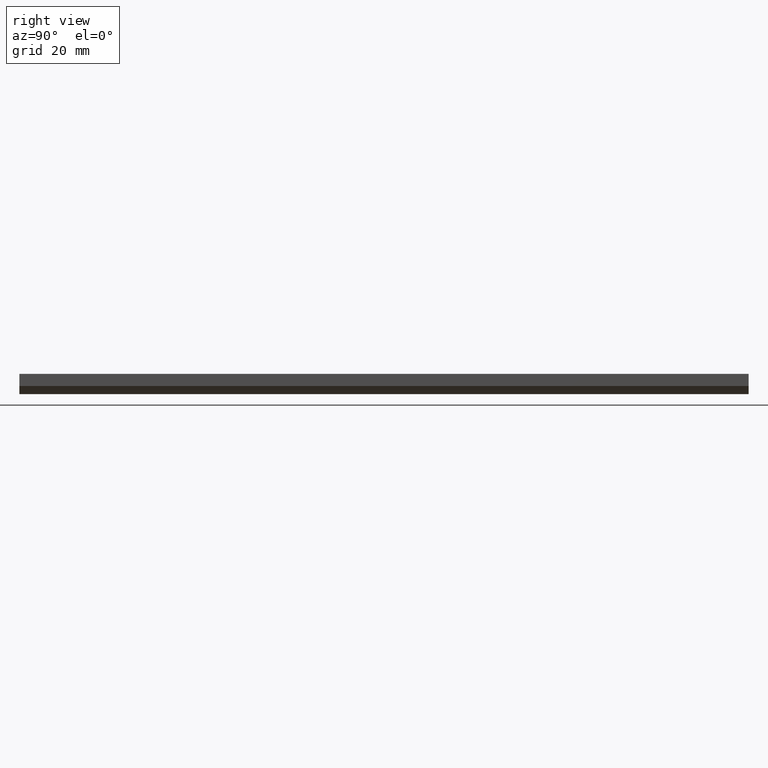
[diagram: clean part render]
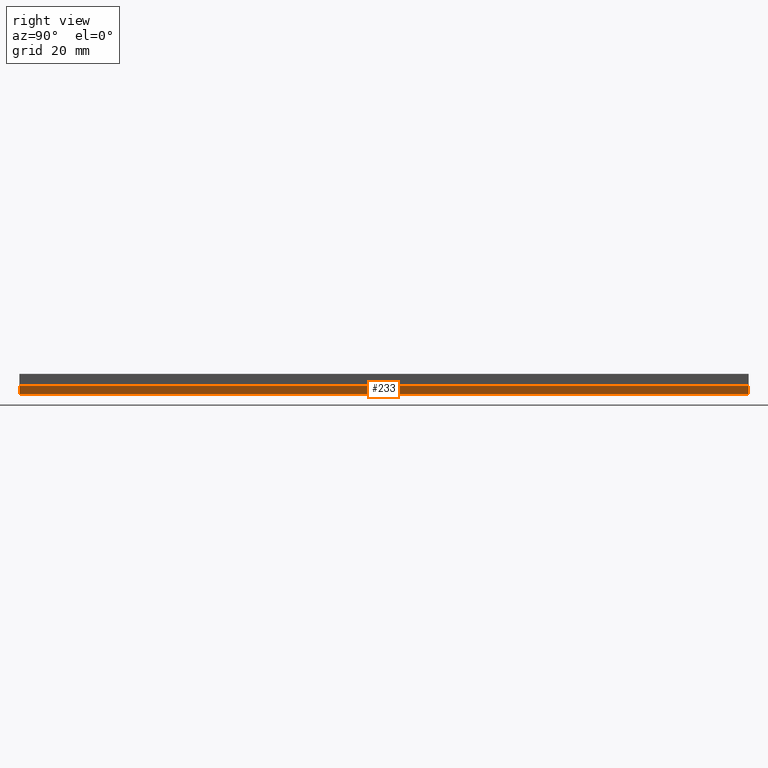
[diagram: same view with one face highlighted and labeled with its STEP entity id]
A machine part, right view. The second image highlights one B-rep face of the part: STEP entity #233.
In plain terms, the highlighted planar face has unit normal (-0.7071, 0, 0.7071).
Its self-contained STEP definition (entity closure, byte-faithful):
#42=FACE_OUTER_BOUND('',#54,.T.);
#54=EDGE_LOOP('',(#163,#164,#165,#166));
#78=LINE('',#332,#96);
#81=LINE('',#338,#99);
#82=LINE('',#340,#100);
#83=LINE('',#341,#101);
#96=VECTOR('',#271,180.);
#99=VECTOR('',#276,2.82842712474619);
#100=VECTOR('',#277,2.82842712474619);
#101=VECTOR('',#278,180.);
#114=VERTEX_POINT('',#329);
#115=VERTEX_POINT('',#331);
#117=VERTEX_POINT('',#337);
#118=VERTEX_POINT('',#339);
#134=EDGE_CURVE('',#114,#115,#78,.T.);
#137=EDGE_CURVE('',#115,#117,#81,.F.);
#138=EDGE_CURVE('',#118,#114,#82,.F.);
#139=EDGE_CURVE('',#117,#118,#83,.T.);
#163=ORIENTED_EDGE('',*,*,#137,.F.);
#164=ORIENTED_EDGE('',*,*,#134,.F.);
#165=ORIENTED_EDGE('',*,*,#138,.F.);
#166=ORIENTED_EDGE('',*,*,#139,.F.);
#212=PLANE('',#247);
#233=ADVANCED_FACE('',(#42),#212,.F.);
#247=AXIS2_PLACEMENT_3D('',#336,#274,#275);
#271=DIRECTION('',(0.,1.,0.));
#274=DIRECTION('center_axis',(-0.707106781186548,0.,0.707106781186548));
#275=DIRECTION('ref_axis',(0.,-1.,0.));
#276=DIRECTION('',(0.707106781186548,0.,0.707106781186548));
#277=DIRECTION('',(-0.707106781186548,0.,-0.707106781186548));
#278=DIRECTION('',(0.,-1.,0.));
#329=CARTESIAN_POINT('',(6.5,0.,-0.5));
#331=CARTESIAN_POINT('',(6.5,180.,-0.5));
#332=CARTESIAN_POINT('',(6.5,180.,-0.5));
#336=CARTESIAN_POINT('Origin',(4.5,180.,-2.5));
#337=CARTESIAN_POINT('',(4.5,180.,-2.5));
#338=CARTESIAN_POINT('',(3.5,180.,-3.5));
#339=CARTESIAN_POINT('',(4.5,0.,-2.5));
#340=CARTESIAN_POINT('',(4.5,0.,-2.5));
#341=CARTESIAN_POINT('',(4.5,180.,-2.5));